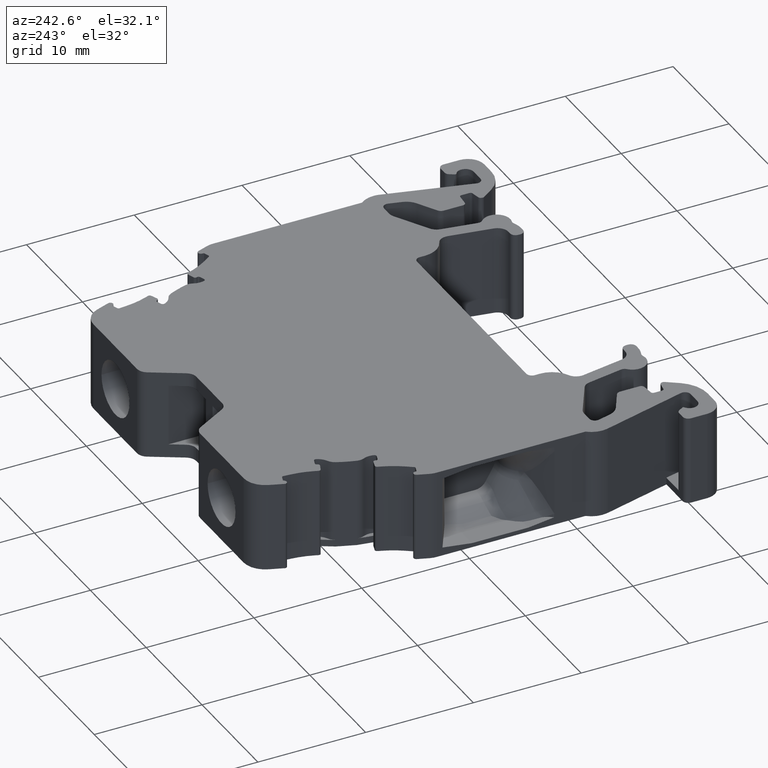
[diagram: clean part render]
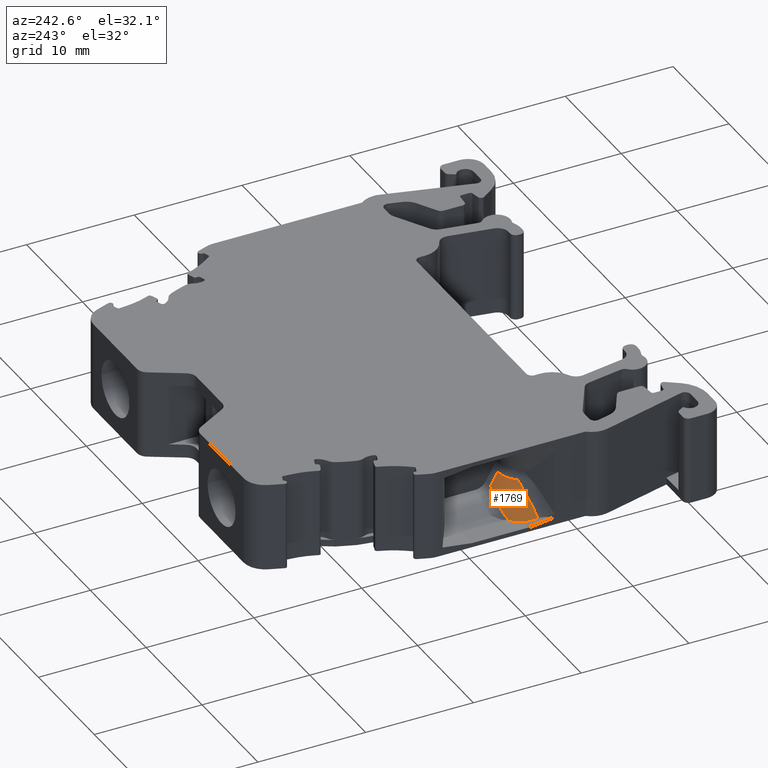
[diagram: same view with one face highlighted and labeled with its STEP entity id]
A machine part, auxiliary view. The second image highlights one B-rep face of the part: STEP entity #1769.
In plain terms, the highlighted conical surface has half-angle 30 deg.
Its self-contained STEP definition (entity closure, byte-faithful):
#478 = CARTESIAN_POINT ( 'NONE',  ( 1444.383287725763500, 935.5819143552134800, -0.8793991164599568300 ) ) ;
#479 = CARTESIAN_POINT ( 'NONE',  ( 1444.337932713992400, 935.5853568893607000, -0.8968392799113299500 ) ) ;
#480 = CARTESIAN_POINT ( 'NONE',  ( 1444.129906140342000, 935.6017147646487000, -0.9844504931880517800 ) ) ;
#481 = CARTESIAN_POINT ( 'NONE',  ( 1444.514487487716500, 935.5723677138713600, -0.8358898352176358200 ) ) ;
#485 = CARTESIAN_POINT ( 'NONE',  ( 1443.970841936096600, 935.6162893317507500, -1.076089903870572000 ) ) ;
#507 = CARTESIAN_POINT ( 'NONE',  ( 1444.826295247756000, 935.5510931816925200, -0.7728128627947724600 ) ) ;
#509 = CARTESIAN_POINT ( 'NONE',  ( 1444.735736903178600, 935.5572108182151400, -0.7834089199929784600 ) ) ;
#513 = CARTESIAN_POINT ( 'NONE',  ( 1444.646688198375200, 935.5631470951549300, -0.8005026702641844200 ) ) ;
#523 = CARTESIAN_POINT ( 'NONE',  ( 1444.470649547233300, 935.5754917318689600, -0.8493099801265604500 ) ) ;
#559 = CARTESIAN_POINT ( 'NONE',  ( 1443.816488918025900, 935.6361545120339500, -1.189279754653389300 ) ) ;
#602 = DIRECTION ( 'NONE',  ( -1.091975760232444400E-014, 0.4999999999972759000, -0.8660254037860114500 ) ) ;
#614 = CARTESIAN_POINT ( 'NONE',  ( 1444.826295241463900, 289032.8892329999400, -499000.0000000036100 ) ) ;
#622 = LINE ( 'NONE', #614, #8736 ) ;
#647 = DIRECTION ( 'NONE',  ( -1.257369747439482200E-014, 0.0000000000000000000, -1.000000000000000000 ) ) ;
#652 = CARTESIAN_POINT ( 'NONE',  ( 1444.826295247756000, 932.4326342281650600, 0.4144152653111328700 ) ) ;
#653 = DIRECTION ( 'NONE',  ( -1.000000000000000000, 0.0000000000000000000, 1.247739629421350900E-014 ) ) ;
#1058 = EDGE_CURVE ( 'NONE', #6485, #6464, #10949, .T. ) ;
#1073 = EDGE_CURVE ( 'NONE', #11785, #6485, #622, .T. ) ;
#1084 = EDGE_CURVE ( 'NONE', #11794, #11785, #8742, .T. ) ;
#1769 = ADVANCED_FACE ( 'NONE', ( #4442 ), #9966, .T. ) ;
#4442 = FACE_OUTER_BOUND ( 'NONE', #7472, .T. ) ;
#4474 = DIRECTION ( 'NONE',  ( -1.000000000000000000, 0.0000000000000000000, 1.257369749373554600E-014 ) ) ;
#4495 = CARTESIAN_POINT ( 'NONE',  ( 1444.826295247756000, 932.4326342281650600, -2.540327520932857700 ) ) ;
#4510 = DIRECTION ( 'NONE',  ( -1.257369749373554400E-014, 0.0000000000000000000, -1.000000000000000000 ) ) ;
#4969 = CARTESIAN_POINT ( 'NONE',  ( 1441.969546253229300, 935.3919615318998200, -2.494835235027337300 ) ) ;
#4970 = CARTESIAN_POINT ( 'NONE',  ( 1441.903052989060800, 935.3627243054795600, -2.540327490942241500 ) ) ;
#5100 = CARTESIAN_POINT ( 'NONE',  ( 1441.903052989060800, 935.3627243054795600, -2.540327490942241500 ) ) ;
#5128 = CARTESIAN_POINT ( 'NONE',  ( 1441.207206489635800, 934.4408601267109600, -2.540327514692751100 ) ) ;
#5191 = CARTESIAN_POINT ( 'NONE',  ( 1440.853079323860800, 933.1825672673956000, -2.374637778268073900 ) ) ;
#5202 = CARTESIAN_POINT ( 'NONE',  ( 1444.826295247756000, 935.5510931816925200, -0.7728128627947724600 ) ) ;
#5227 = CARTESIAN_POINT ( 'NONE',  ( 1443.816488918025900, 935.6361545120339500, -1.189279754653389300 ) ) ;
#5282 = ORIENTED_EDGE ( 'NONE', *, *, #1058, .T. ) ;
#5300 = ORIENTED_EDGE ( 'NONE', *, *, #11162, .T. ) ;
#5367 = ORIENTED_EDGE ( 'NONE', *, *, #11168, .T. ) ;
#5371 = ORIENTED_EDGE ( 'NONE', *, *, #11227, .T. ) ;
#5375 = ORIENTED_EDGE ( 'NONE', *, *, #1084, .T. ) ;
#5377 = ORIENTED_EDGE ( 'NONE', *, *, #11193, .T. ) ;
#5393 = ORIENTED_EDGE ( 'NONE', *, *, #1073, .T. ) ;
#5602 = CARTESIAN_POINT ( 'NONE',  ( 1443.696111360693300, 935.6516871963619900, -1.277621086023401200 ) ) ;
#5606 = CARTESIAN_POINT ( 'NONE',  ( 1443.556839486041800, 935.6638765162526900, -1.379305690066769300 ) ) ;
#5608 = CARTESIAN_POINT ( 'NONE',  ( 1443.317110670111300, 935.6668181263445400, -1.551847505083123700 ) ) ;
#5613 = CARTESIAN_POINT ( 'NONE',  ( 1443.816488918025900, 935.6361545120339500, -1.189279754653389300 ) ) ;
#5614 = CARTESIAN_POINT ( 'NONE',  ( 1443.232076850134300, 935.6652050888849300, -1.612697261580460000 ) ) ;
#5615 = CARTESIAN_POINT ( 'NONE',  ( 1443.096725573972400, 935.6572618661681400, -1.708975623564289200 ) ) ;
#5624 = CARTESIAN_POINT ( 'NONE',  ( 1443.027102513295200, 935.6519056625727400, -1.758365736365608200 ) ) ;
#5719 = CARTESIAN_POINT ( 'NONE',  ( 1442.942476781046000, 935.6428376798284000, -1.818176665300420300 ) ) ;
#5935 = VERTEX_POINT ( 'NONE', #5128 ) ;
#5943 = VERTEX_POINT ( 'NONE', #5100 ) ;
#6060 = VERTEX_POINT ( 'NONE', #5191 ) ;
#6105 = CARTESIAN_POINT ( 'NONE',  ( 1442.899318402239700, 935.6375465486452200, -1.848629412434571200 ) ) ;
#6257 = CARTESIAN_POINT ( 'NONE',  ( 1442.880641316486600, 935.6351110002278800, -1.861797864634818800 ) ) ;
#6462 = CARTESIAN_POINT ( 'NONE',  ( 1442.863351658792700, 935.6328024579701200, -1.873984474782851100 ) ) ;
#6464 = VERTEX_POINT ( 'NONE', #5227 ) ;
#6485 = VERTEX_POINT ( 'NONE', #5202 ) ;
#6520 = CARTESIAN_POINT ( 'NONE',  ( 1442.868149853763300, 935.6334493472152200, -1.870602893847713900 ) ) ;
#6556 = CARTESIAN_POINT ( 'NONE',  ( 1442.607491442539400, 935.5974259572880100, -2.054248291377393600 ) ) ;
#6603 = CARTESIAN_POINT ( 'NONE',  ( 1442.401044605640900, 935.5423152338105400, -2.196722297682506000 ) ) ;
#6656 = CARTESIAN_POINT ( 'NONE',  ( 1442.082324949907200, 935.4394814820486800, -2.417015769507477900 ) ) ;
#6757 = CARTESIAN_POINT ( 'NONE',  ( 1441.139602932041300, 934.2963985378667100, -2.521308438187384900 ) ) ;
#6776 = CARTESIAN_POINT ( 'NONE',  ( 1441.207206489635800, 934.4408601267109600, -2.540327514692751100 ) ) ;
#6797 = CARTESIAN_POINT ( 'NONE',  ( 1441.207206489635800, 934.4408601267109600, -2.540327514692751100 ) ) ;
#6809 = CARTESIAN_POINT ( 'NONE',  ( 1440.939532977430200, 933.7009431850621000, -2.442777780568462300 ) ) ;
#6820 = CARTESIAN_POINT ( 'NONE',  ( 1441.903052989060800, 935.3627243054795600, -2.540327490942241500 ) ) ;
#6827 = CARTESIAN_POINT ( 'NONE',  ( 1441.067469629031200, 934.1202592136567100, -2.497994673521494400 ) ) ;
#6837 = CARTESIAN_POINT ( 'NONE',  ( 1440.853079323860800, 933.1825672673956000, -2.374637778268073900 ) ) ;
#6841 = CARTESIAN_POINT ( 'NONE',  ( 1440.883788888809500, 933.4575444741212800, -2.410874652281320700 ) ) ;
#6842 = CARTESIAN_POINT ( 'NONE',  ( 1441.629605154991200, 935.0899157455603500, -2.540327430153877400 ) ) ;
#6844 = CARTESIAN_POINT ( 'NONE',  ( 1441.394622204481700, 934.7786079569049200, -2.540327430153874700 ) ) ;
#6898 = CARTESIAN_POINT ( 'NONE',  ( 1441.853723325312800, 933.5774295159552600, -0.8887436651627697000 ) ) ;
#6905 = CARTESIAN_POINT ( 'NONE',  ( 1441.867277814016900, 933.5824885731716400, -0.8700134897851123900 ) ) ;
#6911 = CARTESIAN_POINT ( 'NONE',  ( 1441.471350686316100, 933.4317749835142900, -1.433886003981454700 ) ) ;
#6913 = CARTESIAN_POINT ( 'NONE',  ( 1440.853079323860800, 933.1825672673956000, -2.374637778268073900 ) ) ;
#6921 = CARTESIAN_POINT ( 'NONE',  ( 1441.217019979784900, 933.3317402460643300, -1.811161414975269500 ) ) ;
#6922 = CARTESIAN_POINT ( 'NONE',  ( 1441.675038646499400, 933.5100911991257800, -1.139650345702467600 ) ) ;
#6923 = CARTESIAN_POINT ( 'NONE',  ( 1441.836895807580500, 933.5711408821547400, -0.9120499413907001700 ) ) ;
#6925 = CARTESIAN_POINT ( 'NONE',  ( 1441.803072758154300, 933.5584731179279700, -0.9590759419605238100 ) ) ;
#6933 = CARTESIAN_POINT ( 'NONE',  ( 1441.039208267199500, 933.2598397622130100, -2.082838873187005100 ) ) ;
#6934 = CARTESIAN_POINT ( 'NONE',  ( 1441.554062696137000, 933.4638275189488500, -1.313167663037481300 ) ) ;
#6937 = CARTESIAN_POINT ( 'NONE',  ( 1441.734753784473500, 933.5327701869915700, -1.054781735555258700 ) ) ;
#6940 = CARTESIAN_POINT ( 'NONE',  ( 1441.860917128973600, 933.5801150231687900, -0.8787995590772060800 ) ) ;
#6942 = CARTESIAN_POINT ( 'NONE',  ( 1441.865709001750500, 933.5819032315795300, -0.8721799990229065500 ) ) ;
#6943 = CARTESIAN_POINT ( 'NONE',  ( 1442.282279419321900, 933.7372468333480800, -0.2974747489803255000 ) ) ;
#6945 = CARTESIAN_POINT ( 'NONE',  ( 1442.636065091989800, 933.8591622799222000, 0.1291887411132342000 ) ) ;
#6946 = CARTESIAN_POINT ( 'NONE',  ( 1442.947493055960400, 933.9784841638525000, 0.4144152652774181800 ) ) ;
#7472 = EDGE_LOOP ( 'NONE', ( #5375, #5393, #5282, #5371, #5367, #5300, #5377 ) ) ;
#8628 = CARTESIAN_POINT ( 'NONE',  ( 1442.947493055960400, 933.9784841638525000, 0.4144152652774181800 ) ) ;
#8640 = CARTESIAN_POINT ( 'NONE',  ( 1444.826295247756000, 934.8656467023420200, 0.4144152653402472000 ) ) ;
#8736 = VECTOR ( 'NONE', #602, 999.9999999999998900 ) ;
#8742 = CIRCLE ( 'NONE', #8747, 2.433012474218898500 ) ;
#8747 = AXIS2_PLACEMENT_3D ( 'NONE', #652, #647, #653 ) ;
#9952 = AXIS2_PLACEMENT_3D ( 'NONE', #4495, #4510, #4474 ) ;
#9966 = CONICAL_SURFACE ( 'NONE', #9952, 4.138934017239748200, 0.5235987755952487000 ) ;
#10168 = B_SPLINE_CURVE_WITH_KNOTS ( 'NONE', 3,
 ( #6820, #6842, #6844, #6797 ),
 .UNSPECIFIED., .F., .F.,
 ( 4, 4 ),
 ( 0.0000000000000000000, 1.000000000000000000 ),
 .UNSPECIFIED. ) ;
#10169 = B_SPLINE_CURVE_WITH_KNOTS ( 'NONE', 3,
 ( #6776, #6757, #6827, #6809, #6841, #6837 ),
 .UNSPECIFIED., .F., .F.,
 ( 4, 2, 4 ),
 ( 0.0000000000000000000, 0.5000000000000000000, 1.000000000000000000 ),
 .UNSPECIFIED. ) ;
#10176 = B_SPLINE_CURVE_WITH_KNOTS ( 'NONE', 3,
 ( #6913, #6933, #6921, #6911, #6934, #6922, #6937, #6925, #6923, #6898, #6940, #6942, #6905, #6943, #6945, #6946 ),
 .UNSPECIFIED., .F., .F.,
 ( 4, 2, 2, 1, 1, 1, 1, 2, 2, 4 ),
 ( 0.0000000000000000000, 0.2500000000018651200, 0.3750000000028464500, 0.4375000000032731600, 0.4687500000034193800, 0.4843750000034235900, 0.4921875000034256500, 0.4960937500033674700, 0.5000000000033092400, 1.000000000000000000 ),
 .UNSPECIFIED. ) ;
#10949 = B_SPLINE_CURVE_WITH_KNOTS ( 'NONE', 3,
 ( #507, #509, #513, #481, #523, #478, #479, #480, #485, #559 ),
 .UNSPECIFIED., .F., .F.,
 ( 4, 2, 2, 2, 4 ),
 ( 0.0000000000000000000, 0.2500000000001408300, 0.3750000000002112800, 0.5000000000002816600, 1.000000000000000000 ),
 .UNSPECIFIED. ) ;
#11076 = B_SPLINE_CURVE_WITH_KNOTS ( 'NONE', 3,
 ( #5613, #5602, #5606, #5608, #5614, #5615, #5624, #5719, #6105, #6257, #6520, #6462, #6556, #6603, #6656, #4969, #4970 ),
 .UNSPECIFIED., .F., .F.,
 ( 4, 2, 2, 1, 1, 1, 2, 2, 2, 4 ),
 ( 0.0000000000000000000, 0.2499999999985248500, 0.3749999999976722500, 0.4374999999972490300, 0.4687499999969410600, 0.4843749999966879300, 0.4921874999966536800, 0.4999999999966194800, 0.7499999999983096900, 1.000000000000000000 ),
 .UNSPECIFIED. ) ;
#11162 = EDGE_CURVE ( 'NONE', #5935, #6060, #10169, .T. ) ;
#11168 = EDGE_CURVE ( 'NONE', #5943, #5935, #10168, .T. ) ;
#11193 = EDGE_CURVE ( 'NONE', #6060, #11794, #10176, .T. ) ;
#11227 = EDGE_CURVE ( 'NONE', #6464, #5943, #11076, .T. ) ;
#11785 = VERTEX_POINT ( 'NONE', #8640 ) ;
#11794 = VERTEX_POINT ( 'NONE', #8628 ) ;